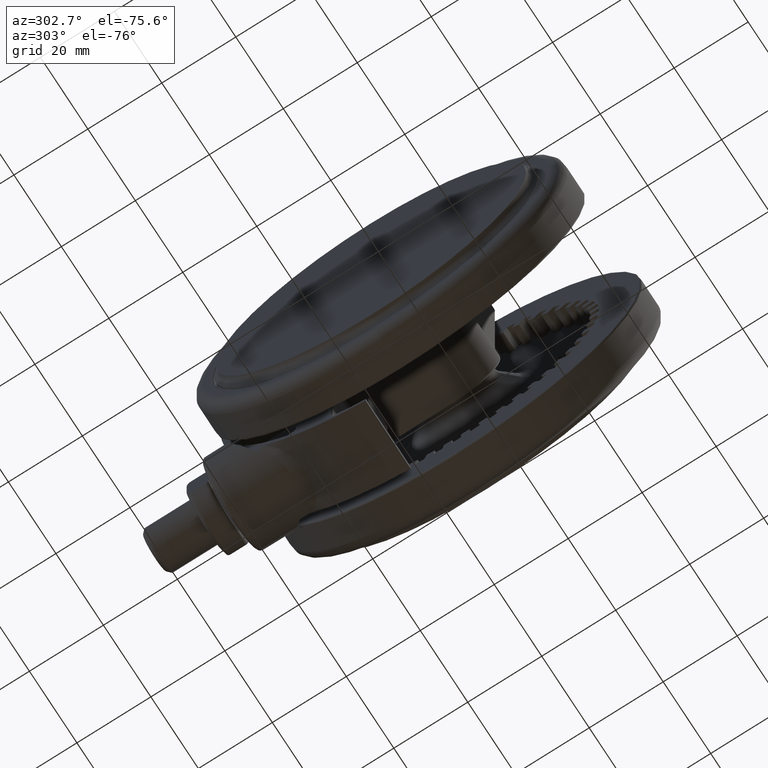
[diagram: clean part render]
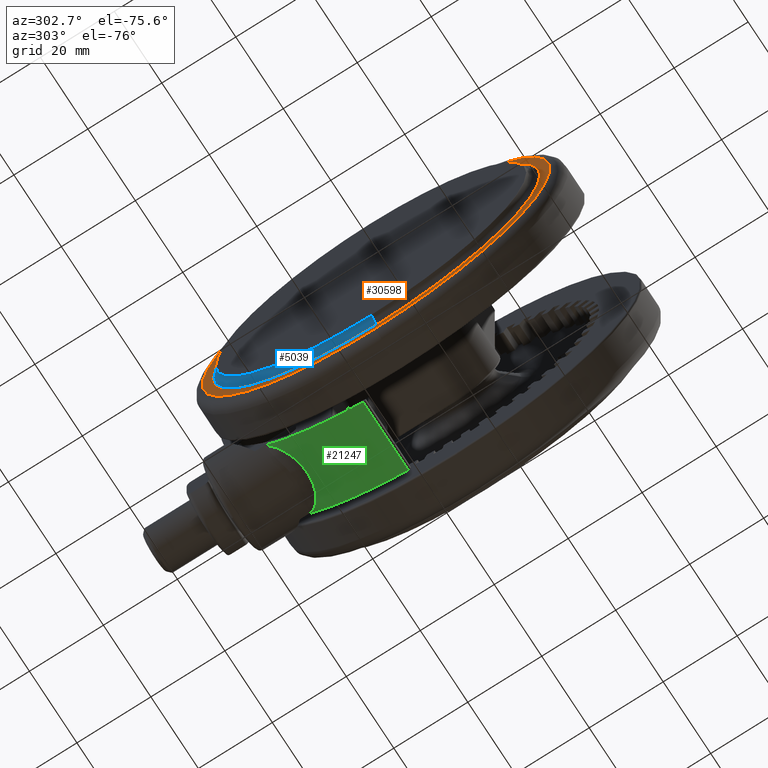
[diagram: same view with three faces highlighted in distinct colors, each labeled with its STEP entity id]
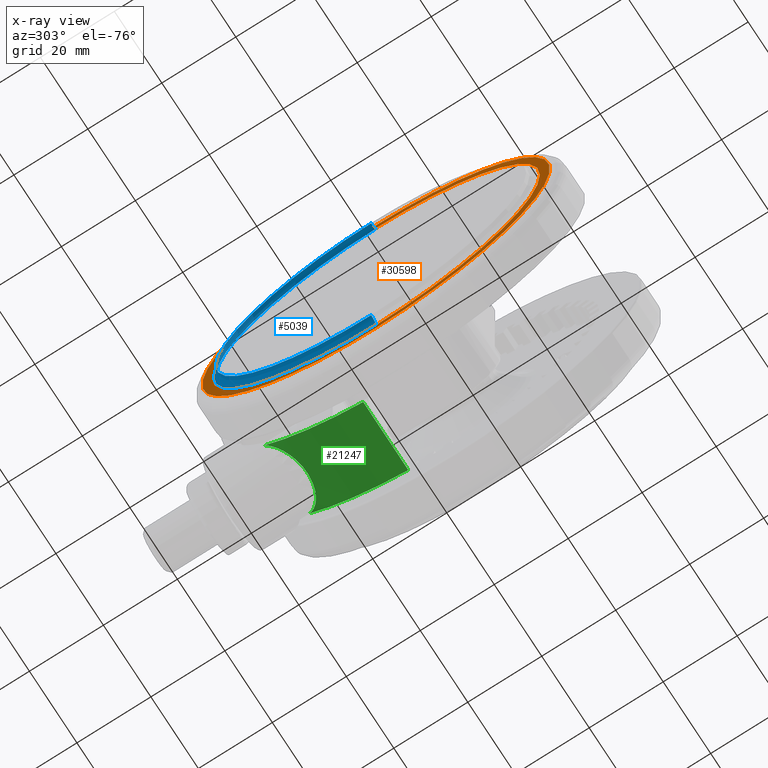
[diagram: x-ray of the same camera — body ghosted, the three highlighted faces saturated]
A machine part, auxiliary view with three faces highlighted in distinct colors.
The next image is the same camera in x-ray (body ghosted, the three faces saturated) — at least one of them is partly hidden behind the body in this view.
Their STEP definitions:

[orange] entity #30598 — the highlighted planar face has unit normal (1, -0, -0).
#614 = CARTESIAN_POINT ( 'NONE',  ( -44.30000000000002600, 3.470023906729257300E-015, -46.50000000000009900 ) ) ;
#2185 = DIRECTION ( 'NONE',  ( 8.142324776845440500E-034, -8.826913830670518300E-017, 1.000000000000000000 ) ) ;
#3017 = CIRCLE ( 'NONE', #12248, 47.00000000000000000 ) ;
#3268 = CARTESIAN_POINT ( 'NONE',  ( 46.99999999999997200, 2.074324750207571900E-015, -46.50000000000008500 ) ) ;
#4052 = AXIS2_PLACEMENT_3D ( 'NONE', #14413, #31899, #16921 ) ;
#5623 = CARTESIAN_POINT ( 'NONE',  ( -2.969749665837643100E-014, 44.00000000000000000, -46.50000000000007800 ) ) ;
#5725 = DIRECTION ( 'NONE',  ( 1.000000000000000000, 4.413456915335259200E-017, 3.081487911019578000E-033 ) ) ;
#5897 = CIRCLE ( 'NONE', #7131, 47.00000000000000000 ) ;
#7131 = AXIS2_PLACEMENT_3D ( 'NONE', #9844, #27350, #12342 ) ;
#7161 = CARTESIAN_POINT ( 'NONE',  ( -2.775557561562891400E-014, 0.0000000000000000000, -46.50000000000008500 ) ) ;
#7165 = CIRCLE ( 'NONE', #22049, 44.29999999999999700 ) ;
#7225 = FACE_BOUND ( 'NONE', #31267, .T. ) ;
#7279 = EDGE_CURVE ( 'NONE', #15780, #16489, #12427, .T. ) ;
#7626 = CARTESIAN_POINT ( 'NONE',  ( 44.29999999999996900, 1.955161413493520800E-015, -46.50000000000009900 ) ) ;
#9698 = DIRECTION ( 'NONE',  ( 1.000000000000000000, 4.413456915335259200E-017, 0.0000000000000000000 ) ) ;
#9844 = CARTESIAN_POINT ( 'NONE',  ( -2.775557561562891400E-014, 0.0000000000000000000, -46.50000000000008500 ) ) ;
#10702 = CARTESIAN_POINT ( 'NONE',  ( -47.00000000000002800, 3.666606664467014500E-015, -46.50000000000008500 ) ) ;
#12248 = AXIS2_PLACEMENT_3D ( 'NONE', #7161, #24694, #9698 ) ;
#12342 = DIRECTION ( 'NONE',  ( 1.000000000000000000, 4.413456915335259200E-017, 0.0000000000000000000 ) ) ;
#12427 = CIRCLE ( 'NONE', #4052, 44.29999999999999700 ) ;
#12811 = ORIENTED_EDGE ( 'NONE', *, *, #17741, .T. ) ;
#14413 = CARTESIAN_POINT ( 'NONE',  ( -2.775557561562891400E-014, 0.0000000000000000000, -46.50000000000008500 ) ) ;
#14493 = EDGE_CURVE ( 'NONE', #16489, #15780, #7165, .T. ) ;
#14734 = VERTEX_POINT ( 'NONE', #3268 ) ;
#15684 = PLANE ( 'NONE',  #31165 ) ;
#15780 = VERTEX_POINT ( 'NONE', #7626 ) ;
#16489 = VERTEX_POINT ( 'NONE', #614 ) ;
#16921 = DIRECTION ( 'NONE',  ( 1.000000000000000000, 4.413456915335259800E-017, 0.0000000000000000000 ) ) ;
#17118 = CARTESIAN_POINT ( 'NONE',  ( -2.775557561562891400E-014, 0.0000000000000000000, -46.50000000000008500 ) ) ;
#17741 = EDGE_CURVE ( 'NONE', #14734, #25037, #3017, .T. ) ;
#19665 = DIRECTION ( 'NONE',  ( 1.000000000000000000, 4.413456915335259800E-017, 0.0000000000000000000 ) ) ;
#20754 = DIRECTION ( 'NONE',  ( 8.142324776845461000E-034, -8.826913830670518300E-017, 1.000000000000000000 ) ) ;
#21163 = ORIENTED_EDGE ( 'NONE', *, *, #14493, .T. ) ;
#21396 = ORIENTED_EDGE ( 'NONE', *, *, #7279, .T. ) ;
#22049 = AXIS2_PLACEMENT_3D ( 'NONE', #17118, #2185, #19665 ) ;
#22073 = ORIENTED_EDGE ( 'NONE', *, *, #24783, .T. ) ;
#24694 = DIRECTION ( 'NONE',  ( -8.142324776845440500E-034, 8.826913830670518300E-017, -1.000000000000000000 ) ) ;
#24783 = EDGE_CURVE ( 'NONE', #25037, #14734, #5897, .T. ) ;
#25037 = VERTEX_POINT ( 'NONE', #10702 ) ;
#27215 = FACE_OUTER_BOUND ( 'NONE', #27811, .T. ) ;
#27350 = DIRECTION ( 'NONE',  ( -8.142324776845440500E-034, 8.826913830670518300E-017, -1.000000000000000000 ) ) ;
#27811 = EDGE_LOOP ( 'NONE', ( #12811, #22073 ) ) ;
#30598 = ADVANCED_FACE ( 'NONE', ( #27215, #7225 ), #15684, .F. ) ;
#31165 = AXIS2_PLACEMENT_3D ( 'NONE', #5623, #20754, #5725 ) ;
#31267 = EDGE_LOOP ( 'NONE', ( #21396, #21163 ) ) ;
#31899 = DIRECTION ( 'NONE',  ( 8.142324776845440500E-034, -8.826913830670518300E-017, 1.000000000000000000 ) ) ;

[blue] entity #5039 — the highlighted toroidal blend (fillet) surface has major radius 44.05 mm and minor (blend) radius 2.0507 mm.
#933 = EDGE_LOOP ( 'NONE', ( #23987, #30802, #27106, #2311 ) ) ;
#1553 = AXIS2_PLACEMENT_3D ( 'NONE', #24249, #9247, #26766 ) ;
#1826 = DIRECTION ( 'NONE',  ( -8.142324776845440500E-034, 8.826913830670518300E-017, -1.000000000000000000 ) ) ;
#2311 = ORIENTED_EDGE ( 'NONE', *, *, #4266, .F. ) ;
#2755 = CARTESIAN_POINT ( 'NONE',  ( 44.04999999999999700, 5.180331068870348100E-015, -48.54523809523800500 ) ) ;
#2931 = VERTEX_POINT ( 'NONE', #24044 ) ;
#4266 = EDGE_CURVE ( 'NONE', #22708, #2931, #15736, .T. ) ;
#5039 = ADVANCED_FACE ( 'NONE', ( #7093 ), #13727, .F. ) ;
#5200 = CARTESIAN_POINT ( 'NONE',  ( -41.99926869965538100, 3.583509318646617500E-015, -48.54523809523800500 ) ) ;
#5229 = DIRECTION ( 'NONE',  ( 0.0000000000000000000, -8.826913830670523200E-017, 1.000000000000000000 ) ) ;
#6215 = EDGE_CURVE ( 'NONE', #19027, #2931, #28939, .T. ) ;
#7093 = FACE_OUTER_BOUND ( 'NONE', #933, .T. ) ;
#9247 = DIRECTION ( 'NONE',  ( -8.142324776845440500E-034, 8.826913830670518300E-017, -1.000000000000000000 ) ) ;
#9826 = CARTESIAN_POINT ( 'NONE',  ( 4.458892139700984000E-035, 1.729889689831440000E-015, -48.54523809523800500 ) ) ;
#11746 = CARTESIAN_POINT ( 'NONE',  ( 4.458892139700963700E-035, 1.729889689831440000E-015, -48.54523809523800500 ) ) ;
#11875 = CARTESIAN_POINT ( 'NONE',  ( -44.04999999999999700, 3.674017461036621000E-015, -48.54523809523800500 ) ) ;
#12328 = DIRECTION ( 'NONE',  ( 0.0000000000000000000, 1.000000000000000000, 1.652146363197072600E-016 ) ) ;
#13727 = TOROIDAL_SURFACE ( 'NONE', #14052, 44.04999999999999700, 2.050731300344620100 ) ;
#14052 = AXIS2_PLACEMENT_3D ( 'NONE', #11746, #1826, #21826 ) ;
#14371 = DIRECTION ( 'NONE',  ( 0.0000000000000000000, 8.826913830670523200E-017, -1.000000000000000000 ) ) ;
#14535 = EDGE_CURVE ( 'NONE', #14604, #22708, #24004, .T. ) ;
#14604 = VERTEX_POINT ( 'NONE', #5200 ) ;
#15736 = CIRCLE ( 'NONE', #26646, 2.050731300344617500 ) ;
#17987 = CIRCLE ( 'NONE', #18495, 2.050731300344617500 ) ;
#18495 = AXIS2_PLACEMENT_3D ( 'NONE', #11875, #29387, #14371 ) ;
#19027 = VERTEX_POINT ( 'NONE', #24246 ) ;
#20233 = DIRECTION ( 'NONE',  ( -7.833011076138272300E-017, 1.000000000000000000, 8.826913830670518300E-017 ) ) ;
#21826 = DIRECTION ( 'NONE',  ( -1.000000000000000000, 4.413456915335259800E-017, 4.709952866388668900E-033 ) ) ;
#22032 = CARTESIAN_POINT ( 'NONE',  ( 41.99926869965538100, 5.019697058972520100E-015, -48.54523809523800500 ) ) ;
#22708 = VERTEX_POINT ( 'NONE', #22032 ) ;
#23709 = AXIS2_PLACEMENT_3D ( 'NONE', #9826, #27329, #12328 ) ;
#23987 = ORIENTED_EDGE ( 'NONE', *, *, #14535, .F. ) ;
#24004 = CIRCLE ( 'NONE', #23709, 41.99926869965538100 ) ;
#24044 = CARTESIAN_POINT ( 'NONE',  ( 43.81162395316312800, 4.981869833394985000E-015, -46.50840827257604100 ) ) ;
#24246 = CARTESIAN_POINT ( 'NONE',  ( -43.81162395316312800, 3.483707623589226000E-015, -46.50840827257604100 ) ) ;
#24249 = CARTESIAN_POINT ( 'NONE',  ( 1.703041914524829200E-033, 1.550100476507669600E-015, -46.50840827257604100 ) ) ;
#26362 = EDGE_CURVE ( 'NONE', #14604, #19027, #17987, .T. ) ;
#26646 = AXIS2_PLACEMENT_3D ( 'NONE', #2755, #20233, #5229 ) ;
#26766 = DIRECTION ( 'NONE',  ( -1.000000000000000000, 4.413456915335259200E-017, 0.0000000000000000000 ) ) ;
#27106 = ORIENTED_EDGE ( 'NONE', *, *, #6215, .T. ) ;
#27329 = DIRECTION ( 'NONE',  ( -8.142324776845440500E-034, 8.826913830670518300E-017, -1.000000000000000000 ) ) ;
#28939 = CIRCLE ( 'NONE', #1553, 43.81162395321010200 ) ;
#29387 = DIRECTION ( 'NONE',  ( -4.413456915335259200E-017, -1.000000000000000000, -8.826913830670518300E-017 ) ) ;
#30802 = ORIENTED_EDGE ( 'NONE', *, *, #26362, .T. ) ;

[green] entity #21247 — the highlighted cylindrical surface (partial cylindrical patch) has radius 50 mm, axis along (-1, 0, 0).
#162 = DIRECTION ( 'NONE',  ( 1.133627716667516000E-033, 4.413456915335259200E-017, -1.000000000000000000 ) ) ;
#1543 = CARTESIAN_POINT ( 'NONE',  ( 32.53170146418551700, 37.97329865379914100, -33.69623421304554300 ) ) ;
#1654 = CARTESIAN_POINT ( 'NONE',  ( 34.29288990463558000, 36.38679042535780900, -32.76208389114430700 ) ) ;
#1761 = CARTESIAN_POINT ( 'NONE',  ( 36.59771754745315800, 34.06892858752119900, -29.82475463302119300 ) ) ;
#1867 = CARTESIAN_POINT ( 'NONE',  ( 37.69123459779177700, 32.85378250809321100, -23.25875986143018500 ) ) ;
#1968 = CARTESIAN_POINT ( 'NONE',  ( 37.16268891530255300, 33.45110870720792200, -20.26802367117650400 ) ) ;
#2076 = CARTESIAN_POINT ( 'NONE',  ( 35.00197835032136600, 35.70589945023003500, -16.45673910144654800 ) ) ;
#2746 = ORIENTED_EDGE ( 'NONE', *, *, #5016, .F. ) ;
#3542 = AXIS2_PLACEMENT_3D ( 'NONE', #12793, #162, #30289 ) ;
#4132 = CARTESIAN_POINT ( 'NONE',  ( 34.67847468078797800, 36.02259843665415700, -32.46738158164354400 ) ) ;
#4243 = CARTESIAN_POINT ( 'NONE',  ( 36.98444995232171100, 33.64767337381374500, -28.85244482626061200 ) ) ;
#4352 = CARTESIAN_POINT ( 'NONE',  ( 37.65198884829325000, 32.89875199347876800, -22.81123102367819700 ) ) ;
#4455 = CARTESIAN_POINT ( 'NONE',  ( 36.70046858691914300, 33.95727959054109800, -19.03021689853185800 ) ) ;
#4567 = CARTESIAN_POINT ( 'NONE',  ( 34.63963226216026900, 36.05716634665797900, -16.12144361543154500 ) ) ;
#5016 = EDGE_CURVE ( 'NONE', #22152, #5109, #15295, .T. ) ;
#5109 = VERTEX_POINT ( 'NONE', #32057 ) ;
#5162 = CARTESIAN_POINT ( 'NONE',  ( 32.12403840463595400, 38.31509045503450000, -33.80000000000001100 ) ) ;
#5662 = AXIS2_PLACEMENT_3D ( 'NONE', #6726, #24241, #9234 ) ;
#6461 = ORIENTED_EDGE ( 'NONE', *, *, #11050, .T. ) ;
#6661 = CARTESIAN_POINT ( 'NONE',  ( 35.44067592291738600, 35.27041211934644600, -31.66187379056688300 ) ) ;
#6726 = CARTESIAN_POINT ( 'NONE',  ( -1.076946330834140200E-032, 1.315445069019957500E-015, -14.80000000000001000 ) ) ;
#6768 = CARTESIAN_POINT ( 'NONE',  ( 37.16940470234046500, 33.44309982805506100, -28.27631121025110200 ) ) ;
#6873 = CARTESIAN_POINT ( 'NONE',  ( 37.62730254867106100, 32.92698418947752300, -22.58655718072868600 ) ) ;
#6979 = CARTESIAN_POINT ( 'NONE',  ( 36.42248523555941400, 34.25506623937974400, -18.45084457819656300 ) ) ;
#7082 = CARTESIAN_POINT ( 'NONE',  ( 34.42855383075278300, 36.25845492202457600, -15.94830099442417600 ) ) ;
#7104 = CIRCLE ( 'NONE', #14489, 50.00000000000000000 ) ;
#7702 = VERTEX_POINT ( 'NONE', #8699 ) ;
#8699 = CARTESIAN_POINT ( 'NONE',  ( 48.63193178670999800, 11.61616161616162100, -33.80000000000001100 ) ) ;
#9158 = CARTESIAN_POINT ( 'NONE',  ( 35.78652116575482700, 34.91896835888577800, -31.20386254525206800 ) ) ;
#9234 = DIRECTION ( 'NONE',  ( 1.000000000000000000, 0.0000000000000000000, 0.0000000000000000000 ) ) ;
#9265 = LINE ( 'NONE', #16386, #28443 ) ;
#9267 = CARTESIAN_POINT ( 'NONE',  ( 37.26106686952010700, 33.34086187254300200, -27.94611248231610600 ) ) ;
#9381 = CARTESIAN_POINT ( 'NONE',  ( 37.53810011567075800, 33.02873721342054800, -21.93390471861958300 ) ) ;
#9474 = CARTESIAN_POINT ( 'NONE',  ( 48.63193178670999800, 11.61616161616162100, -14.80000000000001000 ) ) ;
#9491 = CARTESIAN_POINT ( 'NONE',  ( 36.22481259833311600, 34.46399058006326800, -18.08821197765529500 ) ) ;
#9604 = CARTESIAN_POINT ( 'NONE',  ( 34.36343508477814600, 36.32017561434545900, -15.89721210537101500 ) ) ;
#11050 = EDGE_CURVE ( 'NONE', #31071, #5109, #29272, .T. ) ;
#11556 = CARTESIAN_POINT ( 'NONE',  ( 33.47112494289950000, 37.14491371740820100, -33.28789916122808300 ) ) ;
#11673 = CARTESIAN_POINT ( 'NONE',  ( 35.99919553597424500, 34.69959086388171700, -30.88664248415763700 ) ) ;
#11785 = CARTESIAN_POINT ( 'NONE',  ( 37.28692987240628300, 33.31193546800764700, -27.84773115021839700 ) ) ;
#11896 = CARTESIAN_POINT ( 'NONE',  ( 37.41532364989380700, 33.16771651198349200, -21.29456323547790900 ) ) ;
#12003 = CARTESIAN_POINT ( 'NONE',  ( 36.14486403006561200, 34.54778351006444100, -17.95191337277179500 ) ) ;
#12112 = CARTESIAN_POINT ( 'NONE',  ( 32.93632475846038700, 37.63405544465285100, -15.00704004672171600 ) ) ;
#12793 = CARTESIAN_POINT ( 'NONE',  ( -1.076946330834140200E-032, 1.315445069019957500E-015, -14.80000000000001000 ) ) ;
#14067 = CARTESIAN_POINT ( 'NONE',  ( 34.04114394597100800, 36.62272535006732000, -32.94360000548079600 ) ) ;
#14175 = CARTESIAN_POINT ( 'NONE',  ( 36.07827384832427200, 34.61731754484448200, -30.76019602691370700 ) ) ;
#14282 = CARTESIAN_POINT ( 'NONE',  ( 37.72667130563738200, 32.81308082199323900, -25.51326617933148800 ) ) ;
#14393 = CARTESIAN_POINT ( 'NONE',  ( 37.33401568358185300, 33.25915570764683300, -20.94450826854032500 ) ) ;
#14489 = AXIS2_PLACEMENT_3D ( 'NONE', #14763, #32254, #17268 ) ;
#14502 = CARTESIAN_POINT ( 'NONE',  ( 35.86658510469239800, 34.83840316451788500, -17.49143007599163400 ) ) ;
#14763 = CARTESIAN_POINT ( 'NONE',  ( 1.076946330834140200E-032, 2.154001882933656900E-015, -33.80000000000001100 ) ) ;
#15295 = CIRCLE ( 'NONE', #5662, 50.00000000000000000 ) ;
#15394 = EDGE_CURVE ( 'NONE', #7702, #31071, #7104, .T. ) ;
#16386 = CARTESIAN_POINT ( 'NONE',  ( 48.63193178670999800, 11.61616161616162100, -14.80000000000001000 ) ) ;
#16575 = CARTESIAN_POINT ( 'NONE',  ( 34.25130445586921700, 36.42593799124081500, -32.79308796653460000 ) ) ;
#16686 = CARTESIAN_POINT ( 'NONE',  ( 36.36986337231447700, 34.31289385851398100, -30.28043021496844000 ) ) ;
#16795 = CARTESIAN_POINT ( 'NONE',  ( 37.71843996565867500, 32.82255396730225500, -23.70754885829950400 ) ) ;
#16899 = CARTESIAN_POINT ( 'NONE',  ( 37.30790920989741000, 33.28843755603168100, -20.83889342433576900 ) ) ;
#17008 = CARTESIAN_POINT ( 'NONE',  ( 35.15548171894985800, 35.55468087673249000, -16.61600918984420600 ) ) ;
#17268 = DIRECTION ( 'NONE',  ( 1.000000000000000000, 0.0000000000000000000, 0.0000000000000000000 ) ) ;
#18820 = DIRECTION ( 'NONE',  ( 1.133627716667516000E-033, 4.413456915335259200E-017, -1.000000000000000000 ) ) ;
#19119 = CARTESIAN_POINT ( 'NONE',  ( 34.31274652645884500, 36.36806705901607700, -32.74709739643780900 ) ) ;
#19191 = ORIENTED_EDGE ( 'NONE', *, *, #15394, .T. ) ;
#19224 = CARTESIAN_POINT ( 'NONE',  ( 36.89351901911391700, 33.74743635570671800, -29.10060216485628000 ) ) ;
#19265 = EDGE_LOOP ( 'NONE', ( #19191, #6461, #2746, #28030 ) ) ;
#19337 = CARTESIAN_POINT ( 'NONE',  ( 37.67419706141925700, 32.87332735489169300, -23.03472540845762900 ) ) ;
#19444 = CARTESIAN_POINT ( 'NONE',  ( 36.99640792677027400, 33.63555748422316300, -19.75708853572382000 ) ) ;
#19563 = CARTESIAN_POINT ( 'NONE',  ( 34.76202998411583400, 35.93902763542729400, -16.23101237620990700 ) ) ;
#21176 = FACE_OUTER_BOUND ( 'NONE', #19265, .T. ) ;
#21247 = ADVANCED_FACE ( 'NONE', ( #21176 ), #27071, .T. ) ;
#21541 = CARTESIAN_POINT ( 'NONE',  ( 32.12403840463595400, 38.31509045503450000, -33.80000000000001100 ) ) ;
#21650 = CARTESIAN_POINT ( 'NONE',  ( 34.99755747381399100, 35.71197130703192400, -32.16728140512346800 ) ) ;
#21759 = CARTESIAN_POINT ( 'NONE',  ( 37.10962394447585000, 33.50939683336969200, -28.47004904455612400 ) ) ;
#21868 = CARTESIAN_POINT ( 'NONE',  ( 37.63603152371469200, 32.91700591041627200, -22.66235478231261200 ) ) ;
#21979 = CARTESIAN_POINT ( 'NONE',  ( 36.59406196103343900, 34.07202084390348100, -18.79451486379904100 ) ) ;
#22084 = CARTESIAN_POINT ( 'NONE',  ( 34.49252833873738000, 36.19767272266086200, -15.99937894774339900 ) ) ;
#22152 = VERTEX_POINT ( 'NONE', #9474 ) ;
#24172 = CARTESIAN_POINT ( 'NONE',  ( 35.58246277230635700, 35.12728478890685600, -31.48419502741859300 ) ) ;
#24241 = DIRECTION ( 'NONE',  ( -1.133627716667516000E-033, -4.413456915335259200E-017, 1.000000000000000000 ) ) ;
#24276 = CARTESIAN_POINT ( 'NONE',  ( 37.23429283232788100, 33.37077632623412200, -28.04583883585296200 ) ) ;
#24384 = CARTESIAN_POINT ( 'NONE',  ( 37.58251479947406200, 32.97813730034763300, -22.22206409547560600 ) ) ;
#24501 = CARTESIAN_POINT ( 'NONE',  ( 36.33370454684151000, 34.34932155627424100, -18.28148012701952400 ) ) ;
#24606 = CARTESIAN_POINT ( 'NONE',  ( 34.38569670367532200, 36.29910101383204300, -15.91452357569802700 ) ) ;
#26581 = CARTESIAN_POINT ( 'NONE',  ( 32.91906115883919900, 37.63746394867963100, -33.55523827998324300 ) ) ;
#26690 = CARTESIAN_POINT ( 'NONE',  ( 35.88639470079879600, 34.81640338780152200, -31.06024271980778200 ) ) ;
#26798 = CARTESIAN_POINT ( 'NONE',  ( 37.27868678258919700, 33.32115974008784300, -27.87941658467048400 ) ) ;
#26906 = CARTESIAN_POINT ( 'NONE',  ( 37.45842529910191800, 33.11899733783361900, -21.50681829035518800 ) ) ;
#27017 = CARTESIAN_POINT ( 'NONE',  ( 36.17699705539703100, 34.51413370293398200, -18.00630928014398100 ) ) ;
#27071 = CYLINDRICAL_SURFACE ( 'NONE', #3542, 50.00000000000000000 ) ;
#27123 = CARTESIAN_POINT ( 'NONE',  ( 33.67350113742060100, 36.97218770086729500, -15.36742604078901000 ) ) ;
#28030 = ORIENTED_EDGE ( 'NONE', *, *, #28122, .T. ) ;
#28122 = EDGE_CURVE ( 'NONE', #22152, #7702, #9265, .T. ) ;
#28443 = VECTOR ( 'NONE', #18820, 1000.000000000000000 ) ;
#29069 = CARTESIAN_POINT ( 'NONE',  ( 33.73991292827052700, 36.90143508624567700, -33.14026829706006100 ) ) ;
#29178 = CARTESIAN_POINT ( 'NONE',  ( 36.04674763137578700, 34.65014434421857500, -30.81094728902933600 ) ) ;
#29272 = B_SPLINE_CURVE_WITH_KNOTS ( 'NONE', 3,
 ( #21541, #1543, #26581, #11556, #29069, #14067, #31554, #16575, #1654, #19119, #4132, #21650, #6661, #24172, #9158, #26690, #11673, #29178, #14175, #31657, #16686, #1761, #19224, #4243, #21759, #6768, #24276, #9267, #26798, #11785, #29298, #14282, #31773, #16795, #1867, #19337, #4352, #21868, #6873, #24384, #9381, #26906, #11896, #29403, #14393, #31884, #16899, #1968, #19444, #4455, #21979, #6979, #24501, #9491, #27017, #12003, #29517, #14502, #31994, #17008, #2076, #19563, #4567, #22084, #7082, #24606, #9604, #27123, #12112, #29621 ),
 .UNSPECIFIED., .F., .F.,
 ( 4, 2, 1, 1, 1, 2, 2, 2, 2, 1, 1, 2, 2, 2, 2, 1, 1, 2, 2, 2, 2, 1, 2, 2, 2, 1, 1, 2, 2, 2, 2, 1, 1, 2, 2, 2, 2, 1, 1, 2, 2, 4 ),
 ( 0.0000000000000000000, 0.06250000000000850700, 0.09375000000001301700, 0.1093750000000149900, 0.1171875000000159700, 0.1210937500000162200, 0.1250000000000164600, 0.1875000000000103500, 0.2187500000000075500, 0.2343750000000059100, 0.2421875000000051600, 0.2460937500000049700, 0.2500000000000047700, 0.3124999999999984500, 0.3437499999999954500, 0.3593749999999937300, 0.3671874999999930600, 0.3710937499999925600, 0.3749999999999920100, 0.4999999999999773500, 0.5312499999999736900, 0.5468749999999720200, 0.5546874999999712500, 0.5624999999999704700, 0.5937499999999679100, 0.6093749999999668000, 0.6171874999999660300, 0.6210937499999656900, 0.6249999999999654700, 0.6874999999999674700, 0.7187499999999684700, 0.7343749999999692500, 0.7421874999999700200, 0.7460937499999702500, 0.7499999999999703600, 0.8124999999999763500, 0.8437499999999793500, 0.8593749999999811300, 0.8671874999999822400, 0.8710937499999831200, 0.8749999999999840100, 1.000000000000000000 ),
 .UNSPECIFIED. ) ;
#29298 = CARTESIAN_POINT ( 'NONE',  ( 37.58501714429105800, 32.97809629345242400, -26.68190859808844100 ) ) ;
#29403 = CARTESIAN_POINT ( 'NONE',  ( 37.35927654058051000, 33.23079222800404900, -21.04918661681717800 ) ) ;
#29517 = CARTESIAN_POINT ( 'NONE',  ( 36.12770660375936400, 34.56572447908637700, -17.92322606596894400 ) ) ;
#29621 = CARTESIAN_POINT ( 'NONE',  ( 32.12403840463595400, 38.31509045503445100, -14.80000000000000800 ) ) ;
#30289 = DIRECTION ( 'NONE',  ( -1.000000000000000000, 0.0000000000000000000, 0.0000000000000000000 ) ) ;
#31071 = VERTEX_POINT ( 'NONE', #5162 ) ;
#31554 = CARTESIAN_POINT ( 'NONE',  ( 34.18871064047896600, 36.48476154391279600, -32.83915778884531300 ) ) ;
#31657 = CARTESIAN_POINT ( 'NONE',  ( 36.09326724600048700, 34.60168511526683900, -30.73579949498948200 ) ) ;
#31773 = CARTESIAN_POINT ( 'NONE',  ( 37.72742056007388100, 32.81221933876854300, -24.00770164411129000 ) ) ;
#31884 = CARTESIAN_POINT ( 'NONE',  ( 37.31689872523966800, 33.27835986008985000, -20.87483004962699000 ) ) ;
#31994 = CARTESIAN_POINT ( 'NONE',  ( 35.59718382081841500, 35.11429071728033300, -17.12017626975689000 ) ) ;
#32057 = CARTESIAN_POINT ( 'NONE',  ( 32.12403840463595400, 38.31509045503445100, -14.80000000000000800 ) ) ;
#32254 = DIRECTION ( 'NONE',  ( -1.133627716667516000E-033, -4.413456915335259200E-017, 1.000000000000000000 ) ) ;